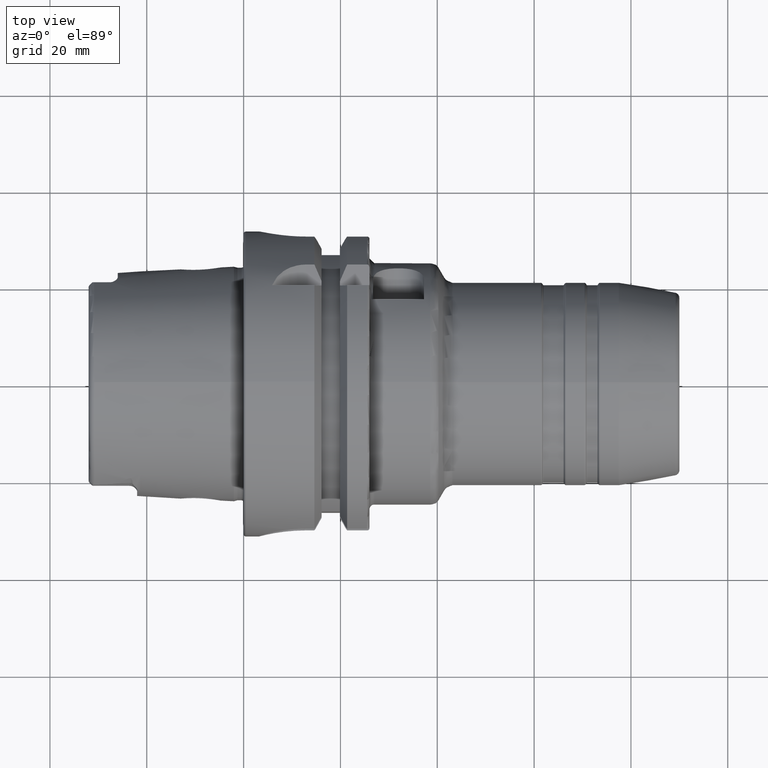
[diagram: clean part render]
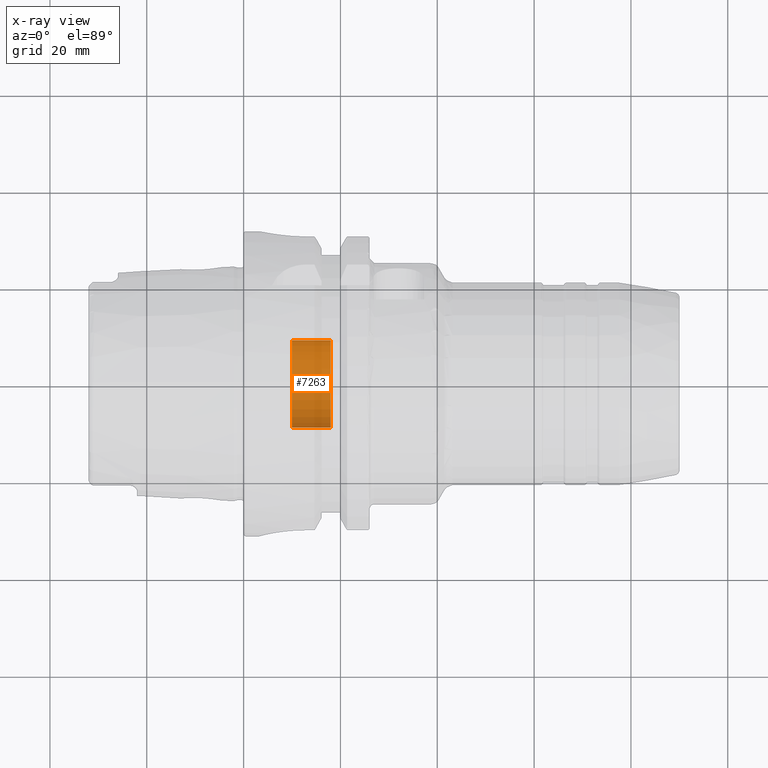
[diagram: x-ray — body ghosted, one internal face saturated and labeled with its STEP entity id]
A machine part, top view, then the same camera in x-ray: the body is ghosted and one INTERNAL B-rep face — a face not visible from any outside direction — is saturated and labeled: STEP entity #7263.
In plain terms, the highlighted cylindrical surface (partial cylindrical patch) has radius 9 mm, axis along (-1, 0, 0).
Its self-contained STEP definition (entity closure, byte-faithful):
#7198=CARTESIAN_POINT('',(1.E1,0.E0,0.E0));
#7199=DIRECTION('',(1.E0,0.E0,0.E0));
#7200=DIRECTION('',(0.E0,-1.E0,0.E0));
#7201=AXIS2_PLACEMENT_3D('',#7198,#7199,#7200);
#7208=DIRECTION('',(1.E0,0.E0,0.E0));
#7209=VECTOR('',#7208,8.E0);
#7210=CARTESIAN_POINT('',(1.E1,-9.E0,0.E0));
#7211=LINE('',#7210,#7209);
#7212=DIRECTION('',(1.E0,0.E0,0.E0));
#7213=VECTOR('',#7212,8.E0);
#7214=CARTESIAN_POINT('',(1.E1,9.E0,0.E0));
#7215=LINE('',#7214,#7213);
#7221=CARTESIAN_POINT('',(1.8E1,0.E0,0.E0));
#7222=DIRECTION('',(-1.E0,0.E0,0.E0));
#7223=DIRECTION('',(0.E0,1.E0,0.E0));
#7224=AXIS2_PLACEMENT_3D('',#7221,#7222,#7223);
#7236=CARTESIAN_POINT('',(1.8E1,9.E0,0.E0));
#7237=CARTESIAN_POINT('',(1.8E1,-9.E0,0.E0));
#7238=VERTEX_POINT('',#7236);
#7239=VERTEX_POINT('',#7237);
#7240=CARTESIAN_POINT('',(1.E1,9.E0,0.E0));
#7241=CARTESIAN_POINT('',(1.E1,-9.E0,0.E0));
#7242=VERTEX_POINT('',#7240);
#7243=VERTEX_POINT('',#7241);
#7248=CARTESIAN_POINT('',(2.376268102482E1,0.E0,0.E0));
#7249=DIRECTION('',(-1.E0,0.E0,0.E0));
#7250=DIRECTION('',(0.E0,1.E0,0.E0));
#7251=AXIS2_PLACEMENT_3D('',#7248,#7249,#7250);
#7252=CYLINDRICAL_SURFACE('',#7251,9.E0);
#7254=ORIENTED_EDGE('',*,*,#7253,.T.);
#7256=ORIENTED_EDGE('',*,*,#7255,.T.);
#7258=ORIENTED_EDGE('',*,*,#7257,.T.);
#7260=ORIENTED_EDGE('',*,*,#7259,.F.);
#7261=EDGE_LOOP('',(#7254,#7256,#7258,#7260));
#7262=FACE_OUTER_BOUND('',#7261,.F.);
#7263=ADVANCED_FACE('',(#7262),#7252,.F.);
#7202=CIRCLE('',#7201,9.E0);
#7225=CIRCLE('',#7224,9.E0);
#7253=EDGE_CURVE('',#7243,#7242,#7202,.T.);
#7255=EDGE_CURVE('',#7242,#7238,#7215,.T.);
#7257=EDGE_CURVE('',#7238,#7239,#7225,.T.);
#7259=EDGE_CURVE('',#7243,#7239,#7211,.T.);